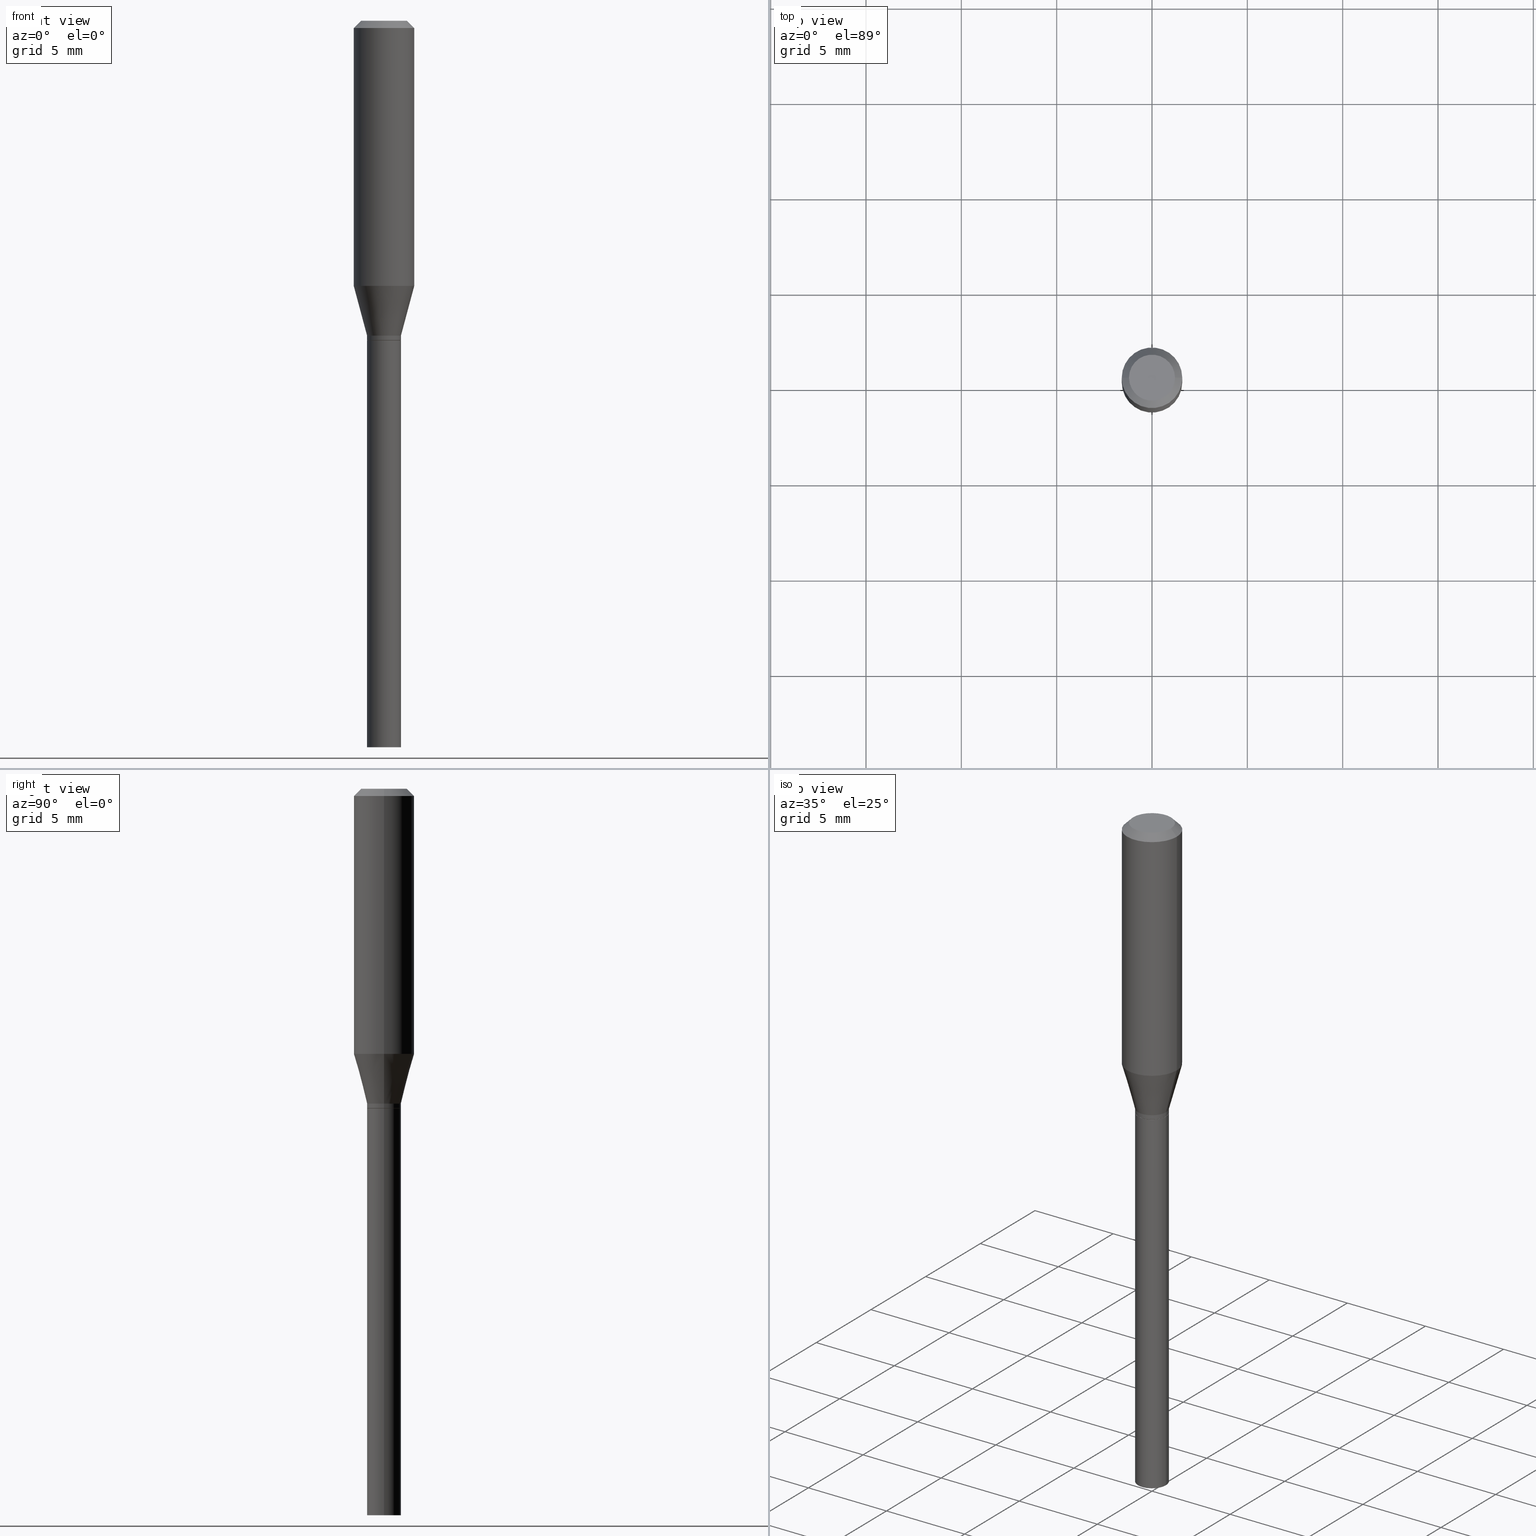
[diagram: canonical four-view strip — front | top / right | iso, engineering-drawing reading convention]
A machine part, canonical four-view strip (front | top / right | iso — engineering-drawing reading convention). The complete STEP part file that produces these views, byte-faithful:
ISO-10303-21;
HEADER;
FILE_DESCRIPTION (( 'STEP AP203' ),
    '1' );
FILE_NAME ('02708.STEP',
    '2024-03-18T21:33:09',
    ( '' ),
    ( '' ),
    'SwSTEP 2.0',
    'SolidWorks 2023',
    '' );
FILE_SCHEMA (( 'CONFIG_CONTROL_DESIGN' ));
ENDSEC;

DATA;
#1 = ADVANCED_FACE ( 'NONE', ( #249 ), #95, .F. ) ;
#2 = VERTEX_POINT ( 'NONE', #246 ) ;
#3 = VECTOR ( 'NONE', #128, 39.37007874015748143 ) ;
#4 = EDGE_CURVE ( 'NONE', #459, #34, #224, .T. ) ;
#5 = APPROVAL ( #178, 'UNSPECIFIED' ) ;
#6 = DIRECTION ( 'NONE',  ( 1.000000000000000000, -6.982962677686265922E-15, 4.876176775795935793E-29 ) ) ;
#7 = PERSON_AND_ORGANIZATION ( #306, #165 ) ;
#8 = FACE_OUTER_BOUND ( 'NONE', #329, .T. ) ;
#9 = LOCAL_TIME ( 17, 33, 9.000000000000000000, #290 ) ;
#10 = DIRECTION ( 'NONE',  ( 1.000000000000000000, -6.982962677686261977E-15, 0.000000000000000000 ) ) ;
#11 = PERSON_AND_ORGANIZATION_ROLE ( 'classification_officer' ) ;
#12 = DIRECTION ( 'NONE',  ( 1.000000000000000000, -6.982962677686266711E-15, 4.876176775795935793E-29 ) ) ;
#13 = ADVANCED_FACE ( 'NONE', ( #259 ), #345, .T. ) ;
#14 = DIRECTION ( 'NONE',  ( 1.000000000000000000, -6.982962677686266711E-15, 0.000000000000000000 ) ) ;
#15 = DIRECTION ( 'NONE',  ( 1.000000000000000000, -6.982962677686265922E-15, 4.876176775795936353E-29 ) ) ;
#16 = COORDINATED_UNIVERSAL_TIME_OFFSET ( 5, 0, .BEHIND. ) ;
#17 = ORIENTED_EDGE ( 'NONE', *, *, #304, .T. ) ;
#18 = APPROVAL_DATE_TIME ( #124, #378 ) ;
#19 = DIRECTION ( 'NONE',  ( -2.445468806185136597E-29, 3.491481338843145583E-15, 1.000000000000000000 ) ) ;
#20 = PERSON_AND_ORGANIZATION ( #306, #165 ) ;
#21 = ORIENTED_EDGE ( 'NONE', *, *, #312, .F. ) ;
#22 = CARTESIAN_POINT ( 'NONE',  ( 0.000000000000000000, 0.000000000000000000, 0.000000000000000000 ) ) ;
#23 = AXIS2_PLACEMENT_3D ( 'NONE', #210, #218, #372 ) ;
#24 = CARTESIAN_POINT ( 'NONE',  ( 0.03500000000000019762, -2.547035636686075470E-15, -0.6595000000000001972 ) ) ;
#25 = AXIS2_PLACEMENT_3D ( 'NONE', #169, #67, #395 ) ;
#26 = ORIENTED_EDGE ( 'NONE', *, *, #258, .T. ) ;
#27 = ORIENTED_EDGE ( 'NONE', *, *, #380, .T. ) ;
#28 = DATE_AND_TIME ( #66, #80 ) ;
#29 = FACE_OUTER_BOUND ( 'NONE', #131, .T. ) ;
#30 = EDGE_LOOP ( 'NONE', ( #111, #366, #466, #424 ) ) ;
#31 = ORIENTED_EDGE ( 'NONE', *, *, #52, .T. ) ;
#32 = DIRECTION ( 'NONE',  ( -2.445468806185136597E-29, 3.491481338843145583E-15, 1.000000000000000000 ) ) ;
#33 = APPLICATION_PROTOCOL_DEFINITION ( 'international standard', 'config_control_design', 1994, #336 ) ;
#34 = VERTEX_POINT ( 'NONE', #327 ) ;
#35 = VERTEX_POINT ( 'NONE', #334 ) ;
#36 = ORIENTED_EDGE ( 'NONE', *, *, #262, .T. ) ;
#37 = CARTESIAN_POINT ( 'NONE',  ( 3.576687321579069994E-29, -5.368277968210015545E-15, -1.500000000000000222 ) ) ;
#38 = CIRCLE ( 'NONE', #225, 0.03500000000000019762 ) ;
#39 = PERSON_AND_ORGANIZATION_ROLE ( 'design_supplier' ) ;
#40 = VERTEX_POINT ( 'NONE', #186 ) ;
#41 = ORIENTED_EDGE ( 'NONE', *, *, #209, .F. ) ;
#42 = CC_DESIGN_PERSON_AND_ORGANIZATION_ASSIGNMENT ( #89, #11, ( #242 ) ) ;
#43 = CYLINDRICAL_SURFACE ( 'NONE', #120, 0.06250000000000000000 ) ;
#44 = CONICAL_SURFACE ( 'NONE', #376, 0.06250000000000000000, 0.7853981633974401744 ) ;
#45 = CARTESIAN_POINT ( 'NONE',  ( 0.06250000000000000000, -4.811533449433679005E-16, -0.01499999999999999944 ) ) ;
#46 = CARTESIAN_POINT ( 'NONE',  ( -0.03500000000000020456, -1.743905482499180370E-15, -0.6500000000000001332 ) ) ;
#47 = CARTESIAN_POINT ( 'NONE',  ( 3.668203209277705088E-31, -5.237222008264718399E-17, -0.01499999999999999944 ) ) ;
#48 = CIRCLE ( 'NONE', #195, 0.03450000000000000289 ) ;
#49 = AXIS2_PLACEMENT_3D ( 'NONE', #191, #339, #110 ) ;
#50 = DIRECTION ( 'NONE',  ( -2.445468806185136597E-29, 3.491481338843145583E-15, 1.000000000000000000 ) ) ;
#51 = FACE_OUTER_BOUND ( 'NONE', #109, .T. ) ;
#52 = EDGE_CURVE ( 'NONE', #291, #35, #48, .T. ) ;
#53 = CARTESIAN_POINT ( 'NONE',  ( 0.06250000000000000000, -4.364351673553916694E-16, 3.047610484872459871E-30 ) ) ;
#54 = ADVANCED_FACE ( 'NONE', ( #257 ), #184, .T. ) ;
#55 = CIRCLE ( 'NONE', #231, 0.03500000000000000333 ) ;
#56 = DIRECTION ( 'NONE',  ( -2.445468806185136597E-29, 3.491481338843145583E-15, 1.000000000000000000 ) ) ;
#57 = EDGE_LOOP ( 'NONE', ( #36, #317 ) ) ;
#58 =( NAMED_UNIT ( * ) SI_UNIT ( $, .STERADIAN. ) SOLID_ANGLE_UNIT ( ) );
#59 = ADVANCED_FACE ( 'NONE', ( #404 ), #180, .F. ) ;
#60 = DATE_TIME_ROLE ( 'creation_date' ) ;
#61 = VERTEX_POINT ( 'NONE', #148 ) ;
#62 = DIRECTION ( 'NONE',  ( 1.000000000000000000, -6.982962677686267499E-15, 4.852736867747366768E-29 ) ) ;
#63 = FACE_OUTER_BOUND ( 'NONE', #362, .T. ) ;
#64 = ORIENTED_EDGE ( 'NONE', *, *, #258, .F. ) ;
#65 = DIRECTION ( 'NONE',  ( 1.000000000000000000, -6.982962677686266711E-15, 0.000000000000000000 ) ) ;
#66 = CALENDAR_DATE ( 2024, 18, 3 ) ;
#67 = DIRECTION ( 'NONE',  ( -2.445468806185136597E-29, 3.491481338843145583E-15, 1.000000000000000000 ) ) ;
#68 = CIRCLE ( 'NONE', #103, 0.04749999999999999362 ) ;
#69 = DIRECTION ( 'NONE',  ( -2.445468806185136597E-29, 3.491481338843145583E-15, 1.000000000000000000 ) ) ;
#70 = CARTESIAN_POINT ( 'NONE',  ( 1.614009412082191062E-29, -2.304377683636477402E-15, -0.6600000000000003642 ) ) ;
#71 = ORIENTED_EDGE ( 'NONE', *, *, #297, .F. ) ;
#72 = CARTESIAN_POINT ( 'NONE',  ( 1.614009412082191062E-29, -2.304377683636477402E-15, -0.6600000000000003642 ) ) ;
#73 = COORDINATED_UNIVERSAL_TIME_OFFSET ( 5, 0, .BEHIND. ) ;
#74 = ORIENTED_EDGE ( 'NONE', *, *, #369, .F. ) ;
#75 = ORIENTED_EDGE ( 'NONE', *, *, #173, .T. ) ;
#76 = DIRECTION ( 'NONE',  ( -2.445468806185136597E-29, 3.491481338843145583E-15, 1.000000000000000000 ) ) ;
#77 = VECTOR ( 'NONE', #400, 39.37007874015748143 ) ;
#78 = ORIENTED_EDGE ( 'NONE', *, *, #197, .F. ) ;
#79 = CC_DESIGN_PERSON_AND_ORGANIZATION_ASSIGNMENT ( #278, #419, ( #121 ) ) ;
#80 = LOCAL_TIME ( 17, 33, 9.000000000000000000, #73 ) ;
#81 = CARTESIAN_POINT ( 'NONE',  ( 1.589554724020339236E-29, -2.269462870248044964E-15, -0.6500000000000001332 ) ) ;
#82 = VECTOR ( 'NONE', #86, 39.37007874015748143 ) ;
#83 = DIRECTION ( 'NONE',  ( -2.445468806185136597E-29, 3.491481338843145583E-15, 1.000000000000000000 ) ) ;
#84 = EDGE_CURVE ( 'NONE', #35, #291, #159, .T. ) ;
#85 = DIRECTION ( 'NONE',  ( -2.445468806185136597E-29, 3.491481338843145583E-15, 1.000000000000000000 ) ) ;
#86 = DIRECTION ( 'NONE',  ( -0.2588190451025215721, 5.211531920934551831E-15, 0.9659258262890679791 ) ) ;
#87 = VECTOR ( 'NONE', #379, 39.37007874015748143 ) ;
#88 = DIRECTION ( 'NONE',  ( -2.445468806185136597E-29, 3.491481338843145583E-15, 1.000000000000000000 ) ) ;
#89 = PERSON_AND_ORGANIZATION ( #306, #165 ) ;
#90 = CARTESIAN_POINT ( 'NONE',  ( 0.03500000000000000333, -2.444036937190193250E-16, 1.706661871528577808E-30 ) ) ;
#91 = CARTESIAN_POINT ( 'NONE',  ( 3.668203209277705088E-31, -5.237222008264718399E-17, -0.01499999999999999944 ) ) ;
#92 = CONICAL_SURFACE ( 'NONE', #296, 0.03500000000000020456, 0.2617993877991502960 ) ;
#93 = DIRECTION ( 'NONE',  ( 1.000000000000000000, -6.982962677686265133E-15, 0.000000000000000000 ) ) ;
#94 = ORIENTED_EDGE ( 'NONE', *, *, #173, .F. ) ;
#95 = PLANE ( 'NONE',  #230 ) ;
#96 = DIRECTION ( 'NONE',  ( 1.000000000000000000, -6.982962677686261977E-15, 0.000000000000000000 ) ) ;
#97 = EDGE_CURVE ( 'NONE', #40, #456, #349, .T. ) ;
#98 = VERTEX_POINT ( 'NONE', #105 ) ;
#99 = CARTESIAN_POINT ( 'NONE',  ( 1.338572843612629275E-29, -1.911127262116415256E-15, -0.5473686027918571728 ) ) ;
#100 = DIRECTION ( 'NONE',  ( -2.445468806185136597E-29, 3.491481338843145583E-15, 1.000000000000000000 ) ) ;
#101 = ORIENTED_EDGE ( 'NONE', *, *, #449, .T. ) ;
#102 = DIRECTION ( 'NONE',  ( 1.000000000000000000, -6.982962677686267499E-15, 4.852736867747366768E-29 ) ) ;
#103 = AXIS2_PLACEMENT_3D ( 'NONE', #141, #320, #102 ) ;
#104 = ORIENTED_EDGE ( 'NONE', *, *, #97, .T. ) ;
#105 = CARTESIAN_POINT ( 'NONE',  ( 0.03500000000000020456, -2.513866563967065719E-15, -0.6500000000000001332 ) ) ;
#106 = ADVANCED_FACE ( 'NONE', ( #221 ), #135, .T. ) ;
#107 = DIRECTION ( 'NONE',  ( -2.438088387897960049E-29, 3.491481338843145188E-15, 1.000000000000000000 ) ) ;
#108 = ORIENTED_EDGE ( 'NONE', *, *, #312, .T. ) ;
#109 = EDGE_LOOP ( 'NONE', ( #31, #432, #427, #217 ) ) ;
#110 = DIRECTION ( 'NONE',  ( 1.000000000000000000, 0.000000000000000000, 0.000000000000000000 ) ) ;
#111 = ORIENTED_EDGE ( 'NONE', *, *, #170, .F. ) ;
#112 = DIRECTION ( 'NONE',  ( -2.445468806185136597E-29, 3.491481338843145583E-15, 1.000000000000000000 ) ) ;
#113 = SECURITY_CLASSIFICATION_LEVEL ( 'unclassified' ) ;
#114 = AXIS2_PLACEMENT_3D ( 'NONE', #158, #125, #163 ) ;
#115 = ORIENTED_EDGE ( 'NONE', *, *, #449, .F. ) ;
#116 = LINE ( 'NONE', #222, #310 ) ;
#117 = DATE_AND_TIME ( #286, #430 ) ;
#118 = ORIENTED_EDGE ( 'NONE', *, *, #4, .T. ) ;
#119 = CARTESIAN_POINT ( 'NONE',  ( 0.03500000000000000333, -5.481625701983738143E-15, -1.500000000000000222 ) ) ;
#120 = AXIS2_PLACEMENT_3D ( 'NONE', #299, #112, #229 ) ;
#121 = PRODUCT_DEFINITION ( 'UNKNOWN', '', #187, #223 ) ;
#122 = ADVANCED_BREP_SHAPE_REPRESENTATION ( '02708', ( #402, #234, #49 ), #458 ) ;
#123 = DIRECTION ( 'NONE',  ( -2.445468806185136597E-29, 3.491481338843145583E-15, 1.000000000000000000 ) ) ;
#124 = DATE_AND_TIME ( #399, #356 ) ;
#125 = DIRECTION ( 'NONE',  ( -2.445468806185136597E-29, 3.491481338843145583E-15, 1.000000000000000000 ) ) ;
#126 = LINE ( 'NONE', #238, #385 ) ;
#127 = AXIS2_PLACEMENT_3D ( 'NONE', #272, #83, #10 ) ;
#128 = DIRECTION ( 'NONE',  ( -2.445468806185136877E-29, 3.491481338843145188E-15, 1.000000000000000000 ) ) ;
#129 = FACE_OUTER_BOUND ( 'NONE', #281, .T. ) ;
#130 = DATE_AND_TIME ( #171, #343 ) ;
#131 = EDGE_LOOP ( 'NONE', ( #147, #118 ) ) ;
#132 = EDGE_CURVE ( 'NONE', #300, #2, #410, .T. ) ;
#133 = LENGTH_MEASURE_WITH_UNIT ( LENGTH_MEASURE( 0.02539999999999999897 ), #172 );
#134 = EDGE_LOOP ( 'NONE', ( #64, #75, #390, #41 ) ) ;
#135 = CONICAL_SURFACE ( 'NONE', #167, 0.03500000000000020456, 0.2617993877991502960 ) ;
#136 = VECTOR ( 'NONE', #235, 39.37007874015748143 ) ;
#137 = DIRECTION ( 'NONE',  ( -2.445468806185136597E-29, 3.491481338843145583E-15, 1.000000000000000000 ) ) ;
#138 = COORDINATED_UNIVERSAL_TIME_OFFSET ( 5, 0, .BEHIND. ) ;
#139 = ORIENTED_EDGE ( 'NONE', *, *, #132, .F. ) ;
#140 = DIRECTION ( 'NONE',  ( -1.000000000000000000, 6.982962677686265922E-15, -4.876176775795935793E-29 ) ) ;
#141 = CARTESIAN_POINT ( 'NONE',  ( -6.039856226162563845E-45, 8.623313963198305035E-31, 2.469815280770058928E-16 ) ) ;
#142 = ADVANCED_FACE ( 'NONE', ( #190 ), #92, .T. ) ;
#143 = VERTEX_POINT ( 'NONE', #437 ) ;
#144 = DIRECTION ( 'NONE',  ( -2.445468806185136597E-29, 3.491481338843145583E-15, 1.000000000000000000 ) ) ;
#145 = DATE_TIME_ROLE ( 'classification_date' ) ;
#146 = EDGE_CURVE ( 'NONE', #40, #266, #116, .T. ) ;
#147 = ORIENTED_EDGE ( 'NONE', *, *, #341, .T. ) ;
#148 = CARTESIAN_POINT ( 'NONE',  ( -0.03500000000000000333, -3.522109888434562701E-15, -0.6600000000000002531 ) ) ;
#149 = AXIS2_PLACEMENT_3D ( 'NONE', #330, #464, #140 ) ;
#150 = UNCERTAINTY_MEASURE_WITH_UNIT (LENGTH_MEASURE( 1.000000000000000082E-05 ), #423, 'distance_accuracy_value', 'NONE');
#151 = DIRECTION ( 'NONE',  ( -2.445468806185136877E-29, 3.491481338843145188E-15, 1.000000000000000000 ) ) ;
#152 = ADVANCED_FACE ( 'NONE', ( #337 ), #43, .T. ) ;
#153 = CC_DESIGN_APPROVAL ( #378, ( #242 ) ) ;
#154 = AXIS2_PLACEMENT_3D ( 'NONE', #311, #123, #12 ) ;
#155 = ORIENTED_EDGE ( 'NONE', *, *, #405, .T. ) ;
#156 = CARTESIAN_POINT ( 'NONE',  ( -0.03500000000000020456, -2.020772912732008495E-15, -0.6500000000000001332 ) ) ;
#157 = PERSON_AND_ORGANIZATION_ROLE ( 'design_owner' ) ;
#158 = CARTESIAN_POINT ( 'NONE',  ( 0.000000000000000000, 0.000000000000000000, 0.000000000000000000 ) ) ;
#159 = CIRCLE ( 'NONE', #282, 0.03450000000000000289 ) ;
#160 = VECTOR ( 'NONE', #384, 39.37007874015748143 ) ;
#161 = SHAPE_DEFINITION_REPRESENTATION ( #303, #122 ) ;
#162 = CARTESIAN_POINT ( 'NONE',  ( 1.338572843612629275E-29, -1.911127262116415256E-15, -0.5473686027918571728 ) ) ;
#163 = DIRECTION ( 'NONE',  ( 1.000000000000000000, -6.982962677686266711E-15, 4.876176775795936353E-29 ) ) ;
#164 = CARTESIAN_POINT ( 'NONE',  ( 1.614009412082190782E-29, -2.304377683636476613E-15, -0.6600000000000002531 ) ) ;
#165 = ORGANIZATION ( 'UNSPECIFIED', 'UNSPECIFIED', '' ) ;
#166 = APPROVAL_ROLE ( '' ) ;
#167 = AXIS2_PLACEMENT_3D ( 'NONE', #460, #288, #425 ) ;
#168 = VECTOR ( 'NONE', #429, 39.37007874015748143 ) ;
#169 = CARTESIAN_POINT ( 'NONE',  ( 1.589554724020339236E-29, -2.269462870248044964E-15, -0.6500000000000001332 ) ) ;
#170 = EDGE_CURVE ( 'NONE', #459, #143, #375, .T. ) ;
#171 = CALENDAR_DATE ( 2024, 18, 3 ) ;
#172 =( LENGTH_UNIT ( ) NAMED_UNIT ( * ) SI_UNIT ( $, .METRE. ) );
#173 = EDGE_CURVE ( 'NONE', #373, #279, #181, .T. ) ;
#174 = ORIENTED_EDGE ( 'NONE', *, *, #84, .F. ) ;
#175 = DIRECTION ( 'NONE',  ( -2.445468806185136597E-29, 3.491481338843145583E-15, 1.000000000000000000 ) ) ;
#176 = CC_DESIGN_PERSON_AND_ORGANIZATION_ASSIGNMENT ( #347, #157, ( #232 ) ) ;
#177 = FACE_OUTER_BOUND ( 'NONE', #134, .T. ) ;
#178 = APPROVAL_STATUS ( 'not_yet_approved' ) ;
#179 = EDGE_LOOP ( 'NONE', ( #21, #463, #101, #139 ) ) ;
#180 = PLANE ( 'NONE',  #149 ) ;
#181 = CIRCLE ( 'NONE', #367, 0.03500000000000000333 ) ;
#182 = DIRECTION ( 'NONE',  ( -2.445468806185136597E-29, 3.491481338843145583E-15, 1.000000000000000000 ) ) ;
#183 = EDGE_LOOP ( 'NONE', ( #403, #104, #27, #293 ) ) ;
#184 = CYLINDRICAL_SURFACE ( 'NONE', #322, 0.03500000000000000333 ) ;
#185 = ORIENTED_EDGE ( 'NONE', *, *, #239, .F. ) ;
#186 = CARTESIAN_POINT ( 'NONE',  ( -0.03500000000000019762, -2.053941985451018640E-15, -0.6595000000000001972 ) ) ;
#187 = PRODUCT_DEFINITION_FORMATION_WITH_SPECIFIED_SOURCE ( 'ANY', '', #232, .NOT_KNOWN. ) ;
#188 = CIRCLE ( 'NONE', #237, 0.06250000000000000000 ) ;
#189 = EDGE_CURVE ( 'NONE', #279, #408, #309, .T. ) ;
#190 = FACE_OUTER_BOUND ( 'NONE', #179, .T. ) ;
#191 = CARTESIAN_POINT ( 'NONE',  ( 0.000000000000000000, 0.000000000000000000, 0.000000000000000000 ) ) ;
#192 = ORIENTED_EDGE ( 'NONE', *, *, #260, .T. ) ;
#193 = ADVANCED_FACE ( 'NONE', ( #51 ), #438, .T. ) ;
#194 = CC_DESIGN_APPROVAL ( #342, ( #121 ) ) ;
#195 = AXIS2_PLACEMENT_3D ( 'NONE', #363, #32, #214 ) ;
#196 = CIRCLE ( 'NONE', #415, 0.03500000000000020456 ) ;
#197 = EDGE_CURVE ( 'NONE', #35, #40, #204, .T. ) ;
#198 = DIRECTION ( 'NONE',  ( 0.7071067811865416886, -7.319954787623233957E-15, -0.7071067811865531239 ) ) ;
#199 = EDGE_CURVE ( 'NONE', #2, #143, #240, .T. ) ;
#200 = PLANE ( 'NONE',  #315 ) ;
#201 = CARTESIAN_POINT ( 'NONE',  ( -0.06250000000000000000, -5.376605312494687485E-16, -0.01499999999999999944 ) ) ;
#202 = AXIS2_PLACEMENT_3D ( 'NONE', #99, #394, #65 ) ;
#203 = CARTESIAN_POINT ( 'NONE',  ( -0.03500000000000000333, 2.486899575160350887E-16, -1.721627281589217108E-30 ) ) ;
#204 = LINE ( 'NONE', #383, #136 ) ;
#205 = PERSON_AND_ORGANIZATION ( #306, #165 ) ;
#206 = DIRECTION ( 'NONE',  ( -2.445468806185136597E-29, 3.491481338843145583E-15, 1.000000000000000000 ) ) ;
#207 = AXIS2_PLACEMENT_3D ( 'NONE', #70, #100, #96 ) ;
#208 = CARTESIAN_POINT ( 'NONE',  ( -0.03500000000000000333, -3.522109888434562701E-15, -1.500000000000000222 ) ) ;
#209 = EDGE_CURVE ( 'NONE', #61, #408, #268, .T. ) ;
#210 = CARTESIAN_POINT ( 'NONE',  ( 3.668203209277705088E-31, -5.237222008264718399E-17, -0.01499999999999999944 ) ) ;
#211 = CARTESIAN_POINT ( 'NONE',  ( 0.03500000000000020456, -2.513866563967065719E-15, -0.6500000000000001332 ) ) ;
#212 = ORIENTED_EDGE ( 'NONE', *, *, #380, .F. ) ;
#213 = CC_DESIGN_APPROVAL ( #5, ( #187 ) ) ;
#214 = DIRECTION ( 'NONE',  ( 1.000000000000000000, -6.982962677686261977E-15, 0.000000000000000000 ) ) ;
#215 = VECTOR ( 'NONE', #198, 39.37007874015748854 ) ;
#216 = DIRECTION ( 'NONE',  ( -1.000000000000000000, 6.982962677686265922E-15, -4.876176775795935793E-29 ) ) ;
#217 = ORIENTED_EDGE ( 'NONE', *, *, #332, .F. ) ;
#218 = DIRECTION ( 'NONE',  ( 2.445468806185136597E-29, -3.491481338843145583E-15, -1.000000000000000000 ) ) ;
#219 = ORIENTED_EDGE ( 'NONE', *, *, #199, .F. ) ;
#220 = ORIENTED_EDGE ( 'NONE', *, *, #332, .T. ) ;
#221 = FACE_OUTER_BOUND ( 'NONE', #340, .T. ) ;
#222 = CARTESIAN_POINT ( 'NONE',  ( -0.03500000000000019762, 2.486899575160364692E-16, -1.721627281589226917E-30 ) ) ;
#223 = DESIGN_CONTEXT ( 'detailed design', #381, 'design' ) ;
#224 = CIRCLE ( 'NONE', #374, 0.04749999999999999362 ) ;
#225 = AXIS2_PLACEMENT_3D ( 'NONE', #316, #56, #93 ) ;
#226 = DIRECTION ( 'NONE',  ( 1.000000000000000000, -6.982962677686276966E-15, 0.000000000000000000 ) ) ;
#227 = PERSON_AND_ORGANIZATION ( #306, #165 ) ;
#228 = PRODUCT_RELATED_PRODUCT_CATEGORY ( 'detail', '', ( #232 ) ) ;
#229 = DIRECTION ( 'NONE',  ( 1.000000000000000000, -6.982962677686266711E-15, 4.876176775795935793E-29 ) ) ;
#230 = AXIS2_PLACEMENT_3D ( 'NONE', #37, #107, #252 ) ;
#231 = AXIS2_PLACEMENT_3D ( 'NONE', #314, #88, #267 ) ;
#232 = PRODUCT ( '02708', '02708', '', ( #344 ) ) ;
#233 = LINE ( 'NONE', #203, #87 ) ;
#234 = MANIFOLD_SOLID_BREP ( 'Body-Move/Copy2[2]', #243 ) ;
#235 = DIRECTION ( 'NONE',  ( -0.7071067811865656694, 7.493145998870420424E-15, 0.7071067811865294761 ) ) ;
#236 = CIRCLE ( 'NONE', #25, 0.03500000000000020456 ) ;
#237 = AXIS2_PLACEMENT_3D ( 'NONE', #47, #206, #14 ) ;
#238 = CARTESIAN_POINT ( 'NONE',  ( 0.03450000000000000289, -2.545289896016653177E-15, -0.6600000000000003642 ) ) ;
#239 = EDGE_CURVE ( 'NONE', #248, #143, #188, .T. ) ;
#240 = LINE ( 'NONE', #53, #160 ) ;
#241 = CARTESIAN_POINT ( 'NONE',  ( 0.03500000000000000333, -2.548781377355495790E-15, -0.6600000000000002531 ) ) ;
#242 = SECURITY_CLASSIFICATION ( '', '', #113 ) ;
#243 = CLOSED_SHELL ( 'NONE', ( #284, #193, #409, #152, #106, #142, #273, #13, #433, #276, #441, #462 ) ) ;
#244 = AXIS2_PLACEMENT_3D ( 'NONE', #250, #182, #15 ) ;
#245 = CALENDAR_DATE ( 2024, 18, 3 ) ;
#246 = CARTESIAN_POINT ( 'NONE',  ( 0.06250000000000000000, -2.347562429471806531E-15, -0.5473686027918571728 ) ) ;
#247 = CARTESIAN_POINT ( 'NONE',  ( 3.668203209277705088E-31, -5.237222008264718399E-17, -0.01499999999999999944 ) ) ;
#248 = VERTEX_POINT ( 'NONE', #201 ) ;
#249 = FACE_OUTER_BOUND ( 'NONE', #326, .T. ) ;
#250 = CARTESIAN_POINT ( 'NONE',  ( 0.000000000000000000, 0.000000000000000000, 0.000000000000000000 ) ) ;
#251 = CC_DESIGN_SECURITY_CLASSIFICATION ( #242, ( #187 ) ) ;
#252 = DIRECTION ( 'NONE',  ( 1.000000000000000000, -6.982962677686265922E-15, 4.876176775795935793E-29 ) ) ;
#253 = APPROVAL_STATUS ( 'not_yet_approved' ) ;
#254 = AXIS2_PLACEMENT_3D ( 'NONE', #323, #295, #368 ) ;
#255 = CIRCLE ( 'NONE', #421, 0.06250000000000000000 ) ;
#256 = DIRECTION ( 'NONE',  ( 2.445468806185136597E-29, -3.491481338843145583E-15, -1.000000000000000000 ) ) ;
#257 = FACE_OUTER_BOUND ( 'NONE', #420, .T. ) ;
#258 = EDGE_CURVE ( 'NONE', #373, #61, #233, .T. ) ;
#259 = FACE_OUTER_BOUND ( 'NONE', #30, .T. ) ;
#260 = EDGE_CURVE ( 'NONE', #2, #300, #255, .T. ) ;
#261 = ORIENTED_EDGE ( 'NONE', *, *, #405, .F. ) ;
#262 = EDGE_CURVE ( 'NONE', #408, #61, #55, .T. ) ;
#263 = DIRECTION ( 'NONE',  ( 1.000000000000000000, -6.982962677686263555E-15, 0.000000000000000000 ) ) ;
#264 = DIMENSIONAL_EXPONENTS ( 1.000000000000000000, 0.000000000000000000, 0.000000000000000000, 0.000000000000000000, 0.000000000000000000, 0.000000000000000000, 0.000000000000000000 ) ;
#265 = ORIENTED_EDGE ( 'NONE', *, *, #304, .F. ) ;
#266 = VERTEX_POINT ( 'NONE', #46 ) ;
#267 = DIRECTION ( 'NONE',  ( 1.000000000000000000, -6.982962677686262766E-15, 0.000000000000000000 ) ) ;
#268 = CIRCLE ( 'NONE', #389, 0.03500000000000000333 ) ;
#269 = EDGE_CURVE ( 'NONE', #300, #248, #352, .T. ) ;
#270 = DIRECTION ( 'NONE',  ( -2.445468806185136597E-29, 3.491481338843145583E-15, 1.000000000000000000 ) ) ;
#271 = CARTESIAN_POINT ( 'NONE',  ( 1.589554724020339236E-29, -2.269462870248044964E-15, -0.6500000000000001332 ) ) ;
#272 = CARTESIAN_POINT ( 'NONE',  ( 1.614009412082191062E-29, -2.304377683636477402E-15, -0.6600000000000003642 ) ) ;
#273 = ADVANCED_FACE ( 'NONE', ( #443 ), #445, .T. ) ;
#274 = AXIS2_PLACEMENT_3D ( 'NONE', #413, #85, #387 ) ;
#275 = CARTESIAN_POINT ( 'NONE',  ( 0.03450000000000000289, -2.545289896016653177E-15, -0.6600000000000003642 ) ) ;
#276 = ADVANCED_FACE ( 'NONE', ( #412 ), #200, .F. ) ;
#277 = DIRECTION ( 'NONE',  ( -0.7071067811865416886, 2.468850131082196713E-15, -0.7071067811865531239 ) ) ;
#278 = PERSON_AND_ORGANIZATION ( #306, #165 ) ;
#279 = VERTEX_POINT ( 'NONE', #119 ) ;
#280 = CARTESIAN_POINT ( 'NONE',  ( 0.03500000000000019762, -2.444036937190207055E-16, 1.706661871528587267E-30 ) ) ;
#281 = EDGE_LOOP ( 'NONE', ( #455, #465, #155, #74 ) ) ;
#282 = AXIS2_PLACEMENT_3D ( 'NONE', #72, #175, #318 ) ;
#283 = CIRCLE ( 'NONE', #346, 0.06250000000000000000 ) ;
#284 = ADVANCED_FACE ( 'NONE', ( #8 ), #448, .T. ) ;
#285 = CYLINDRICAL_SURFACE ( 'NONE', #351, 0.03500000000000019762 ) ;
#286 = CALENDAR_DATE ( 2024, 18, 3 ) ;
#287 = ORIENTED_EDGE ( 'NONE', *, *, #132, .T. ) ;
#288 = DIRECTION ( 'NONE',  ( -2.445468806185136597E-29, 3.491481338843145583E-15, 1.000000000000000000 ) ) ;
#289 = CARTESIAN_POINT ( 'NONE',  ( -0.06250000000000000000, 3.840629472727444916E-16, -0.01499999999999999944 ) ) ;
#290 = COORDINATED_UNIVERSAL_TIME_OFFSET ( 5, 0, .BEHIND. ) ;
#291 = VERTEX_POINT ( 'NONE', #275 ) ;
#292 = DIRECTION ( 'NONE',  ( 0.7071067811865656694, -2.468850131082446387E-15, 0.7071067811865294761 ) ) ;
#293 = ORIENTED_EDGE ( 'NONE', *, *, #359, .F. ) ;
#294 = ORIENTED_EDGE ( 'NONE', *, *, #199, .T. ) ;
#295 = DIRECTION ( 'NONE',  ( -2.445468806185136597E-29, 3.491481338843145583E-15, 1.000000000000000000 ) ) ;
#296 = AXIS2_PLACEMENT_3D ( 'NONE', #81, #338, #263 ) ;
#297 = EDGE_CURVE ( 'NONE', #98, #266, #196, .T. ) ;
#298 = ORIENTED_EDGE ( 'NONE', *, *, #84, .T. ) ;
#299 = CARTESIAN_POINT ( 'NONE',  ( 0.000000000000000000, 0.000000000000000000, 0.000000000000000000 ) ) ;
#300 = VERTEX_POINT ( 'NONE', #414 ) ;
#301 = ORIENTED_EDGE ( 'NONE', *, *, #189, .F. ) ;
#302 = VECTOR ( 'NONE', #277, 39.37007874015748854 ) ;
#303 = PRODUCT_DEFINITION_SHAPE ( 'NONE', 'NONE',  #121 ) ;
#304 = EDGE_CURVE ( 'NONE', #279, #373, #444, .T. ) ;
#305 = APPROVAL_PERSON_ORGANIZATION ( #205, #342, #166 ) ;
#306 = PERSON ( 'UNSPECIFIED', 'UNSPECIFIED', 'UNSPECIFIED', ('UNSPECIFIED'), ('UNSPECIFIED'), ('UNSPECIFIED') ) ;
#307 = DIRECTION ( 'NONE',  ( 1.000000000000000000, -6.982962677686262766E-15, 0.000000000000000000 ) ) ;
#308 = APPROVAL_PERSON_ORGANIZATION ( #20, #5, #321 ) ;
#309 = LINE ( 'NONE', #90, #431 ) ;
#310 = VECTOR ( 'NONE', #151, 39.37007874015748143 ) ;
#311 = CARTESIAN_POINT ( 'NONE',  ( 0.000000000000000000, 0.000000000000000000, 0.000000000000000000 ) ) ;
#312 = EDGE_CURVE ( 'NONE', #266, #300, #417, .T. ) ;
#313 = DIRECTION ( 'NONE',  ( 1.000000000000000000, -6.982962677686263555E-15, 0.000000000000000000 ) ) ;
#314 = CARTESIAN_POINT ( 'NONE',  ( 1.614009412082190782E-29, -2.304377683636476613E-15, -0.6600000000000002531 ) ) ;
#315 = AXIS2_PLACEMENT_3D ( 'NONE', #416, #446, #6 ) ;
#316 = CARTESIAN_POINT ( 'NONE',  ( 1.612786677679097980E-29, -2.302631942967054715E-15, -0.6595000000000001972 ) ) ;
#317 = ORIENTED_EDGE ( 'NONE', *, *, #209, .T. ) ;
#318 = DIRECTION ( 'NONE',  ( 1.000000000000000000, -6.982962677686261977E-15, 0.000000000000000000 ) ) ;
#319 = APPROVAL_ROLE ( '' ) ;
#320 = DIRECTION ( 'NONE',  ( -2.445468806185136597E-29, 3.491481338843145583E-15, 1.000000000000000000 ) ) ;
#321 = APPROVAL_ROLE ( '' ) ;
#322 = AXIS2_PLACEMENT_3D ( 'NONE', #22, #144, #401 ) ;
#323 = CARTESIAN_POINT ( 'NONE',  ( 1.612786677679097980E-29, -2.302631942967054715E-15, -0.6595000000000001972 ) ) ;
#324 =( NAMED_UNIT ( * ) PLANE_ANGLE_UNIT ( ) SI_UNIT ( $, .RADIAN. ) );
#325 = ORIENTED_EDGE ( 'NONE', *, *, #454, .T. ) ;
#326 = EDGE_LOOP ( 'NONE', ( #265, #94 ) ) ;
#327 = CARTESIAN_POINT ( 'NONE',  ( -0.04749999999999999362, 3.578768372314215436E-16, 2.469815280770034769E-16 ) ) ;
#328 = DIRECTION ( 'NONE',  ( 1.000000000000000000, -6.982962677686266711E-15, 4.876176775795936353E-29 ) ) ;
#329 = EDGE_LOOP ( 'NONE', ( #325, #422, #71, #212 ) ) ;
#330 = CARTESIAN_POINT ( 'NONE',  ( 2.444036937190354474E-16, 0.03499999999999769962, -0.6600000000000003642 ) ) ;
#331 = CC_DESIGN_DATE_AND_TIME_ASSIGNMENT ( #28, #145, ( #242 ) ) ;
#332 = EDGE_CURVE ( 'NONE', #291, #456, #126, .T. ) ;
#333 = EDGE_LOOP ( 'NONE', ( #435, #174 ) ) ;
#334 = CARTESIAN_POINT ( 'NONE',  ( -0.03450000000000000289, -2.056591212625130630E-15, -0.6600000000000003642 ) ) ;
#335 = AXIS2_PLACEMENT_3D ( 'NONE', #388, #361, #216 ) ;
#336 = APPLICATION_CONTEXT ( 'configuration controlled 3d designs of mechanical parts and assemblies' ) ;
#337 = FACE_OUTER_BOUND ( 'NONE', #392, .T. ) ;
#338 = DIRECTION ( 'NONE',  ( -2.445468806185136597E-29, 3.491481338843145583E-15, 1.000000000000000000 ) ) ;
#339 = DIRECTION ( 'NONE',  ( 0.000000000000000000, 0.000000000000000000, 1.000000000000000000 ) ) ;
#340 = EDGE_LOOP ( 'NONE', ( #371, #108, #407, #115 ) ) ;
#341 = EDGE_CURVE ( 'NONE', #34, #459, #68, .T. ) ;
#342 = APPROVAL ( #355, 'UNSPECIFIED' ) ;
#343 = LOCAL_TIME ( 17, 33, 9.000000000000000000, #16 ) ;
#344 = MECHANICAL_CONTEXT ( 'NONE', #336, 'mechanical' ) ;
#345 = CONICAL_SURFACE ( 'NONE', #23, 0.06250000000000000000, 0.7853981633974401744 ) ;
#346 = AXIS2_PLACEMENT_3D ( 'NONE', #91, #19, #393 ) ;
#347 = PERSON_AND_ORGANIZATION ( #306, #165 ) ;
#348 = DIRECTION ( 'NONE',  ( 1.000000000000000000, -6.982962677686266711E-15, 0.000000000000000000 ) ) ;
#349 = CIRCLE ( 'NONE', #254, 0.03500000000000019762 ) ;
#350 = DIRECTION ( 'NONE',  ( -2.445468806185136597E-29, 3.491481338843145583E-15, 1.000000000000000000 ) ) ;
#351 = AXIS2_PLACEMENT_3D ( 'NONE', #370, #137, #328 ) ;
#352 = LINE ( 'NONE', #447, #3 ) ;
#353 = DIRECTION ( 'NONE',  ( -2.445468806185136877E-29, 3.491481338843145188E-15, 1.000000000000000000 ) ) ;
#354 = CC_DESIGN_DATE_AND_TIME_ASSIGNMENT ( #391, #60, ( #121 ) ) ;
#355 = APPROVAL_STATUS ( 'not_yet_approved' ) ;
#356 = LOCAL_TIME ( 17, 33, 9.000000000000000000, #364 ) ;
#357 = CYLINDRICAL_SURFACE ( 'NONE', #244, 0.03500000000000000333 ) ;
#358 = CARTESIAN_POINT ( 'NONE',  ( 0.04749999999999999362, -4.035134999187574186E-16, 2.469815280770084566E-16 ) ) ;
#359 = EDGE_CURVE ( 'NONE', #266, #98, #236, .T. ) ;
#360 = ORIENTED_EDGE ( 'NONE', *, *, #97, .F. ) ;
#361 = DIRECTION ( 'NONE',  ( 2.438088387897960049E-29, -3.491481338843145188E-15, -1.000000000000000000 ) ) ;
#362 = EDGE_LOOP ( 'NONE', ( #78, #298, #220, #360 ) ) ;
#363 = CARTESIAN_POINT ( 'NONE',  ( 1.614009412082191062E-29, -2.304377683636477402E-15, -0.6600000000000003642 ) ) ;
#364 = COORDINATED_UNIVERSAL_TIME_OFFSET ( 5, 0, .BEHIND. ) ;
#365 = FACE_OUTER_BOUND ( 'NONE', #183, .T. ) ;
#366 = ORIENTED_EDGE ( 'NONE', *, *, #341, .F. ) ;
#367 = AXIS2_PLACEMENT_3D ( 'NONE', #406, #76, #226 ) ;
#368 = DIRECTION ( 'NONE',  ( 1.000000000000000000, -6.982962677686265133E-15, 0.000000000000000000 ) ) ;
#369 = EDGE_CURVE ( 'NONE', #34, #248, #418, .T. ) ;
#370 = CARTESIAN_POINT ( 'NONE',  ( 0.000000000000000000, 0.000000000000000000, 0.000000000000000000 ) ) ;
#371 = ORIENTED_EDGE ( 'NONE', *, *, #297, .T. ) ;
#372 = DIRECTION ( 'NONE',  ( -1.000000000000000000, 6.982962677686266711E-15, 0.000000000000000000 ) ) ;
#373 = VERTEX_POINT ( 'NONE', #208 ) ;
#374 = AXIS2_PLACEMENT_3D ( 'NONE', #398, #69, #62 ) ;
#375 = LINE ( 'NONE', #45, #215 ) ;
#376 = AXIS2_PLACEMENT_3D ( 'NONE', #247, #256, #450 ) ;
#377 = APPROVAL_DATE_TIME ( #117, #5 ) ;
#378 = APPROVAL ( #253, 'UNSPECIFIED' ) ;
#379 = DIRECTION ( 'NONE',  ( -2.445468806185136877E-29, 3.491481338843145188E-15, 1.000000000000000000 ) ) ;
#380 = EDGE_CURVE ( 'NONE', #456, #98, #461, .T. ) ;
#381 = APPLICATION_CONTEXT ( 'configuration controlled 3d designs of mechanical parts and assemblies' ) ;
#382 = APPLICATION_PROTOCOL_DEFINITION ( 'international standard', 'config_control_design', 1994, #381 ) ;
#383 = CARTESIAN_POINT ( 'NONE',  ( -0.03450000000000000289, -2.059240439799242620E-15, -0.6600000000000003642 ) ) ;
#384 = DIRECTION ( 'NONE',  ( -2.445468806185136877E-29, 3.491481338843145188E-15, 1.000000000000000000 ) ) ;
#385 = VECTOR ( 'NONE', #292, 39.37007874015748143 ) ;
#386 = CC_DESIGN_PERSON_AND_ORGANIZATION_ASSIGNMENT ( #7, #434, ( #187 ) ) ;
#387 = DIRECTION ( 'NONE',  ( 1.000000000000000000, -6.982962677686276966E-15, 0.000000000000000000 ) ) ;
#388 = CARTESIAN_POINT ( 'NONE',  ( 3.316907271900976096E-16, 0.04749999999999999362, -4.235459955654645622E-17 ) ) ;
#389 = AXIS2_PLACEMENT_3D ( 'NONE', #164, #50, #307 ) ;
#390 = ORIENTED_EDGE ( 'NONE', *, *, #189, .T. ) ;
#391 = DATE_AND_TIME ( #245, #9 ) ;
#392 = EDGE_LOOP ( 'NONE', ( #192, #453, #261, #219 ) ) ;
#393 = DIRECTION ( 'NONE',  ( 1.000000000000000000, -6.982962677686266711E-15, 0.000000000000000000 ) ) ;
#394 = DIRECTION ( 'NONE',  ( -2.445468806185136597E-29, 3.491481338843145583E-15, 1.000000000000000000 ) ) ;
#395 = DIRECTION ( 'NONE',  ( 1.000000000000000000, -6.982962677686263555E-15, 0.000000000000000000 ) ) ;
#396 = APPROVAL_PERSON_ORGANIZATION ( #428, #378, #319 ) ;
#397 = ORIENTED_EDGE ( 'NONE', *, *, #262, .F. ) ;
#398 = CARTESIAN_POINT ( 'NONE',  ( -6.039856226162563845E-45, 8.623313963198305035E-31, 2.469815280770058928E-16 ) ) ;
#399 = CALENDAR_DATE ( 2024, 18, 3 ) ;
#400 = DIRECTION ( 'NONE',  ( 0.2588190451025215721, 1.565188264969619995E-15, 0.9659258262890679791 ) ) ;
#401 = DIRECTION ( 'NONE',  ( 1.000000000000000000, -6.982962677686265922E-15, 4.876176775795936353E-29 ) ) ;
#402 = MANIFOLD_SOLID_BREP ( 'Body-Move/Copy2[1]', #436 ) ;
#403 = ORIENTED_EDGE ( 'NONE', *, *, #146, .F. ) ;
#404 = FACE_OUTER_BOUND ( 'NONE', #57, .T. ) ;
#405 = EDGE_CURVE ( 'NONE', #143, #248, #283, .T. ) ;
#406 = CARTESIAN_POINT ( 'NONE',  ( 3.668203209277704895E-29, -5.237222008264718177E-15, -1.500000000000000222 ) ) ;
#407 = ORIENTED_EDGE ( 'NONE', *, *, #260, .F. ) ;
#408 = VERTEX_POINT ( 'NONE', #241 ) ;
#409 = ADVANCED_FACE ( 'NONE', ( #129 ), #44, .T. ) ;
#410 = CIRCLE ( 'NONE', #202, 0.06250000000000000000 ) ;
#411 = CONICAL_SURFACE ( 'NONE', #207, 0.03450000000000000289, 0.7853981633974739252 ) ;
#412 = FACE_OUTER_BOUND ( 'NONE', #333, .T. ) ;
#413 = CARTESIAN_POINT ( 'NONE',  ( 3.668203209277704895E-29, -5.237222008264718177E-15, -1.500000000000000222 ) ) ;
#414 = CARTESIAN_POINT ( 'NONE',  ( -0.06250000000000000000, -1.467038052266352442E-15, -0.5473686027918571728 ) ) ;
#415 = AXIS2_PLACEMENT_3D ( 'NONE', #271, #270, #313 ) ;
#416 = CARTESIAN_POINT ( 'NONE',  ( 1.614009412082191062E-29, -2.304377683636477402E-15, -0.6600000000000003642 ) ) ;
#417 = LINE ( 'NONE', #156, #82 ) ;
#418 = LINE ( 'NONE', #289, #302 ) ;
#419 = PERSON_AND_ORGANIZATION_ROLE ( 'creator' ) ;
#420 = EDGE_LOOP ( 'NONE', ( #17, #26, #397, #301 ) ) ;
#421 = AXIS2_PLACEMENT_3D ( 'NONE', #162, #350, #348 ) ;
#422 = ORIENTED_EDGE ( 'NONE', *, *, #146, .T. ) ;
#423 =( CONVERSION_BASED_UNIT ( 'INCH', #133 ) LENGTH_UNIT ( ) NAMED_UNIT ( #264 ) );
#424 = ORIENTED_EDGE ( 'NONE', *, *, #239, .T. ) ;
#425 = DIRECTION ( 'NONE',  ( 1.000000000000000000, -6.982962677686263555E-15, 0.000000000000000000 ) ) ;
#426 = PLANE ( 'NONE',  #335 ) ;
#427 = ORIENTED_EDGE ( 'NONE', *, *, #454, .F. ) ;
#428 = PERSON_AND_ORGANIZATION ( #306, #165 ) ;
#429 = DIRECTION ( 'NONE',  ( -2.445468806185136877E-29, 3.491481338843145188E-15, 1.000000000000000000 ) ) ;
#430 = LOCAL_TIME ( 17, 33, 9.000000000000000000, #138 ) ;
#431 = VECTOR ( 'NONE', #353, 39.37007874015748143 ) ;
#432 = ORIENTED_EDGE ( 'NONE', *, *, #197, .T. ) ;
#433 = ADVANCED_FACE ( 'NONE', ( #29 ), #426, .F. ) ;
#434 = PERSON_AND_ORGANIZATION_ROLE ( 'creator' ) ;
#435 = ORIENTED_EDGE ( 'NONE', *, *, #52, .F. ) ;
#436 = CLOSED_SHELL ( 'NONE', ( #54, #1, #452, #59 ) ) ;
#437 = CARTESIAN_POINT ( 'NONE',  ( 0.06250000000000000000, -4.888073874380388472E-16, -0.01499999999999999944 ) ) ;
#438 = CONICAL_SURFACE ( 'NONE', #127, 0.03450000000000000289, 0.7853981633974739252 ) ;
#439 = EDGE_LOOP ( 'NONE', ( #440, #287, #294, #185 ) ) ;
#440 = ORIENTED_EDGE ( 'NONE', *, *, #269, .F. ) ;
#441 = ADVANCED_FACE ( 'NONE', ( #63 ), #411, .T. ) ;
#442 = CC_DESIGN_PERSON_AND_ORGANIZATION_ASSIGNMENT ( #227, #39, ( #187 ) ) ;
#443 = FACE_OUTER_BOUND ( 'NONE', #439, .T. ) ;
#444 = CIRCLE ( 'NONE', #274, 0.03500000000000000333 ) ;
#445 = CYLINDRICAL_SURFACE ( 'NONE', #154, 0.06250000000000000000 ) ;
#446 = DIRECTION ( 'NONE',  ( -2.438088387897960049E-29, 3.491481338843145188E-15, 1.000000000000000000 ) ) ;
#447 = CARTESIAN_POINT ( 'NONE',  ( -0.06250000000000000000, 4.440892098500626162E-16, -3.074334431409316114E-30 ) ) ;
#448 = CYLINDRICAL_SURFACE ( 'NONE', #114, 0.03500000000000019762 ) ;
#449 = EDGE_CURVE ( 'NONE', #98, #2, #457, .T. ) ;
#450 = DIRECTION ( 'NONE',  ( -1.000000000000000000, 6.982962677686266711E-15, 0.000000000000000000 ) ) ;
#451 = APPROVAL_DATE_TIME ( #130, #342 ) ;
#452 = ADVANCED_FACE ( 'NONE', ( #177 ), #357, .T. ) ;
#453 = ORIENTED_EDGE ( 'NONE', *, *, #269, .T. ) ;
#454 = EDGE_CURVE ( 'NONE', #456, #40, #38, .T. ) ;
#455 = ORIENTED_EDGE ( 'NONE', *, *, #4, .F. ) ;
#456 = VERTEX_POINT ( 'NONE', #24 ) ;
#457 = LINE ( 'NONE', #211, #77 ) ;
#458 =( GEOMETRIC_REPRESENTATION_CONTEXT ( 3 ) GLOBAL_UNCERTAINTY_ASSIGNED_CONTEXT ( ( #150 ) ) GLOBAL_UNIT_ASSIGNED_CONTEXT ( ( #423, #324, #58 ) ) REPRESENTATION_CONTEXT ( 'NONE', 'WORKASPACE' ) );
#459 = VERTEX_POINT ( 'NONE', #358 ) ;
#460 = CARTESIAN_POINT ( 'NONE',  ( 1.589554724020339236E-29, -2.269462870248044964E-15, -0.6500000000000001332 ) ) ;
#461 = LINE ( 'NONE', #280, #168 ) ;
#462 = ADVANCED_FACE ( 'NONE', ( #365 ), #285, .T. ) ;
#463 = ORIENTED_EDGE ( 'NONE', *, *, #359, .T. ) ;
#464 = DIRECTION ( 'NONE',  ( 2.438088387897960049E-29, -3.491481338843145188E-15, -1.000000000000000000 ) ) ;
#465 = ORIENTED_EDGE ( 'NONE', *, *, #170, .T. ) ;
#466 = ORIENTED_EDGE ( 'NONE', *, *, #369, .T. ) ;
ENDSEC;
END-ISO-10303-21;
